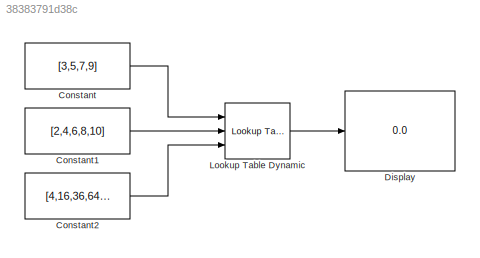
MODEL slx_38383791d38c
KIND model
CONFIG AbsTol = auto
CONFIG EnableMultiTasking = off
CONFIG FixedStep = auto
CONFIG MaxStep = auto
CONFIG MinStep = auto
CONFIG RelTol = 1e-3
CONFIG SampleTimeConstraint = Unconstrained
CONFIG Solver = VariableStepAuto
CONFIG SolverName = VariableStepAuto
CONFIG StartTime = 0.0
CONFIG StopTime = 10.0
BLOCK [Constant] Constant
  Value = [3,5,7,9]
BLOCK [Constant] Constant1
  Value = [2,4,6,8,10]
BLOCK [Constant] Constant2
  Value = [4,16,36,64,100]
BLOCK [Display] Display
  Decimation = 1
  Ports = [1]
BLOCK [Reference] Lookup Table Dynamic  REF=simulink/Lookup
Tables/Lookup
Table
Dynamic
  Ports = [3, 1]
  SourceBlock = simulink/Lookup\nTables/Lookup\nTable\nDynamic
  SourceProductBaseCode = SL
  SourceType = Lookup Table Dynamic
LINE Constant1:1 -> Lookup Table Dynamic:2
LINE Constant2:1 -> Lookup Table Dynamic:3
LINE Constant:1 -> Lookup Table Dynamic:1
LINE Lookup Table Dynamic:1 -> Display:1
